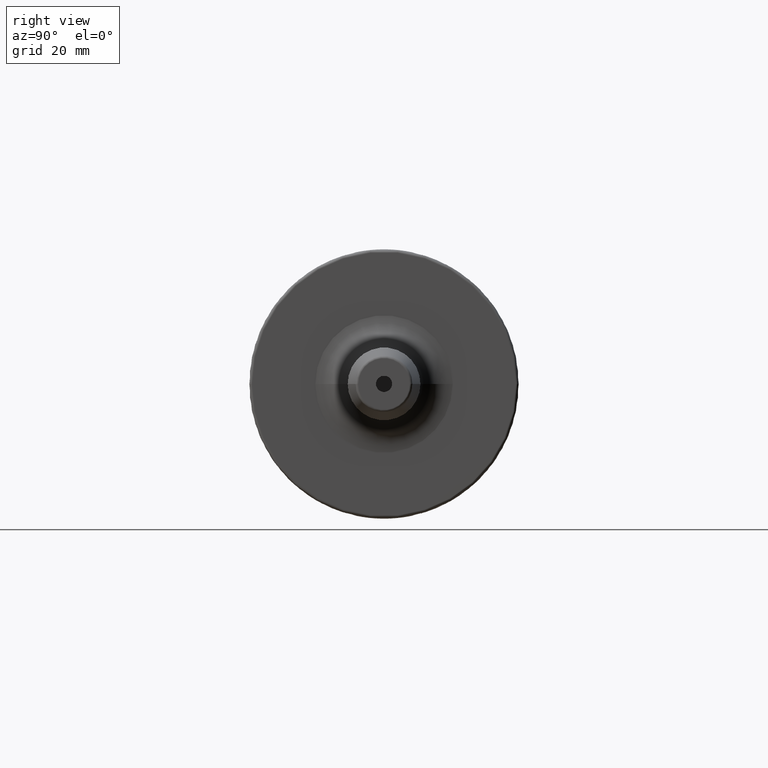
[diagram: clean part render]
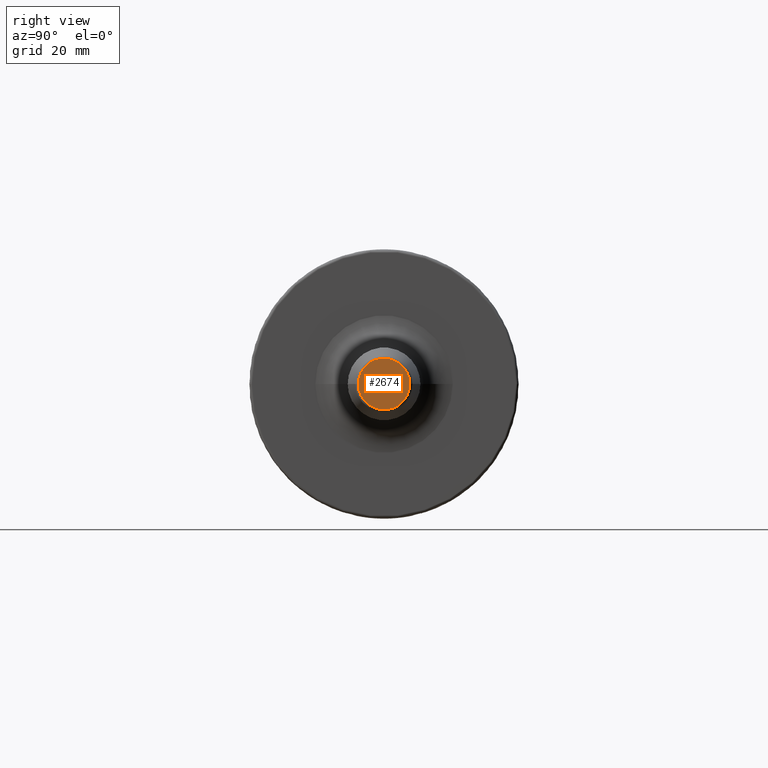
[diagram: same view with one face highlighted and labeled with its STEP entity id]
A machine part, right view. The second image highlights one B-rep face of the part: STEP entity #2674.
In plain terms, the highlighted planar face has unit normal (1, 0, 0).
Its self-contained STEP definition (entity closure, byte-faithful):
#910=CARTESIAN_POINT('',(1.3E2,0.E0,0.E0));
#911=DIRECTION('',(1.E0,0.E0,0.E0));
#912=DIRECTION('',(0.E0,1.E0,0.E0));
#913=AXIS2_PLACEMENT_3D('',#910,#911,#912);
#915=CARTESIAN_POINT('',(1.3E2,0.E0,0.E0));
#916=DIRECTION('',(1.E0,0.E0,0.E0));
#917=DIRECTION('',(0.E0,-1.E0,0.E0));
#918=AXIS2_PLACEMENT_3D('',#915,#916,#917);
#920=CARTESIAN_POINT('',(1.3E2,0.E0,0.E0));
#921=DIRECTION('',(-1.E0,0.E0,0.E0));
#922=DIRECTION('',(0.E0,1.E0,0.E0));
#923=AXIS2_PLACEMENT_3D('',#920,#921,#922);
#925=CARTESIAN_POINT('',(1.3E2,0.E0,0.E0));
#926=DIRECTION('',(-1.E0,0.E0,0.E0));
#927=DIRECTION('',(0.E0,-1.E0,0.E0));
#928=AXIS2_PLACEMENT_3D('',#925,#926,#927);
#1399=CARTESIAN_POINT('',(1.3E2,3.E0,0.E0));
#1400=CARTESIAN_POINT('',(1.3E2,-3.E0,0.E0));
#1401=VERTEX_POINT('',#1399);
#1402=VERTEX_POINT('',#1400);
#1415=CARTESIAN_POINT('',(1.3E2,9.575609508342E0,0.E0));
#1416=CARTESIAN_POINT('',(1.3E2,-9.575609508342E0,0.E0));
#1417=VERTEX_POINT('',#1415);
#1418=VERTEX_POINT('',#1416);
#2659=CARTESIAN_POINT('',(1.3E2,0.E0,0.E0));
#2660=DIRECTION('',(1.E0,0.E0,0.E0));
#2661=DIRECTION('',(0.E0,-1.E0,0.E0));
#2662=AXIS2_PLACEMENT_3D('',#2659,#2660,#2661);
#2663=PLANE('',#2662);
#2664=ORIENTED_EDGE('',*,*,#2626,.T.);
#2665=ORIENTED_EDGE('',*,*,#2641,.T.);
#2666=EDGE_LOOP('',(#2664,#2665));
#2667=FACE_OUTER_BOUND('',#2666,.F.);
#2669=ORIENTED_EDGE('',*,*,#2668,.T.);
#2671=ORIENTED_EDGE('',*,*,#2670,.T.);
#2672=EDGE_LOOP('',(#2669,#2671));
#2673=FACE_BOUND('',#2672,.F.);
#2674=ADVANCED_FACE('',(#2667,#2673),#2663,.T.);
#914=CIRCLE('',#913,3.E0);
#919=CIRCLE('',#918,3.E0);
#924=CIRCLE('',#923,9.575609508342E0);
#929=CIRCLE('',#928,9.575609508342E0);
#2626=EDGE_CURVE('',#1417,#1418,#924,.T.);
#2641=EDGE_CURVE('',#1418,#1417,#929,.T.);
#2668=EDGE_CURVE('',#1401,#1402,#914,.T.);
#2670=EDGE_CURVE('',#1402,#1401,#919,.T.);